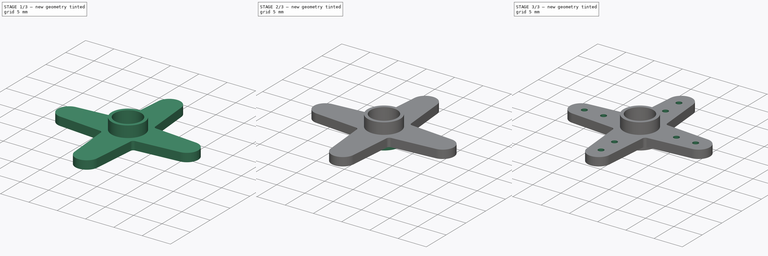
[diagram: build sequence overview — one tinted view per stage of 3, left to right]
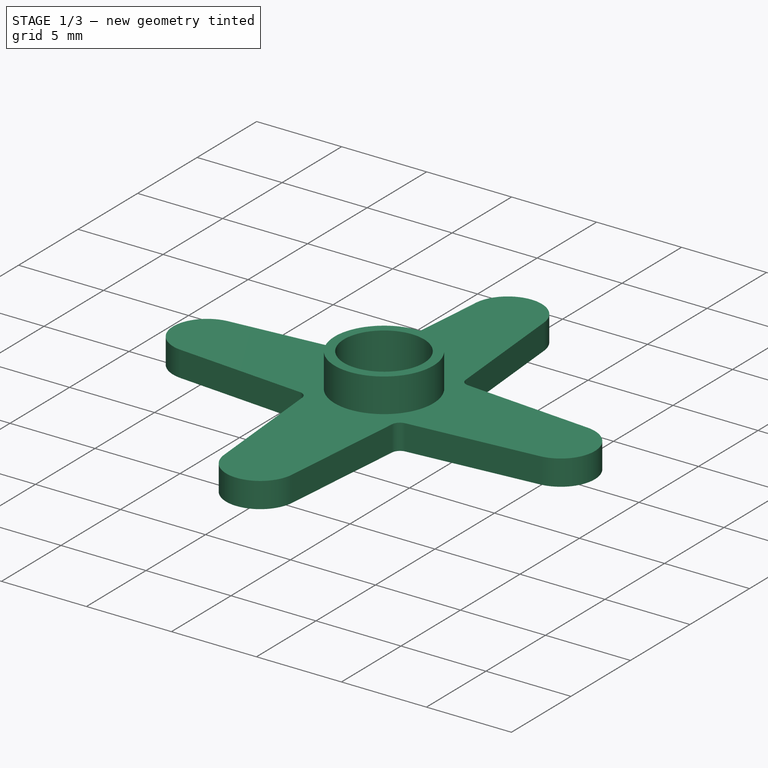
[diagram: stage 1 of 3 — iso view after this stage's code; geometry added in this stage tinted green]
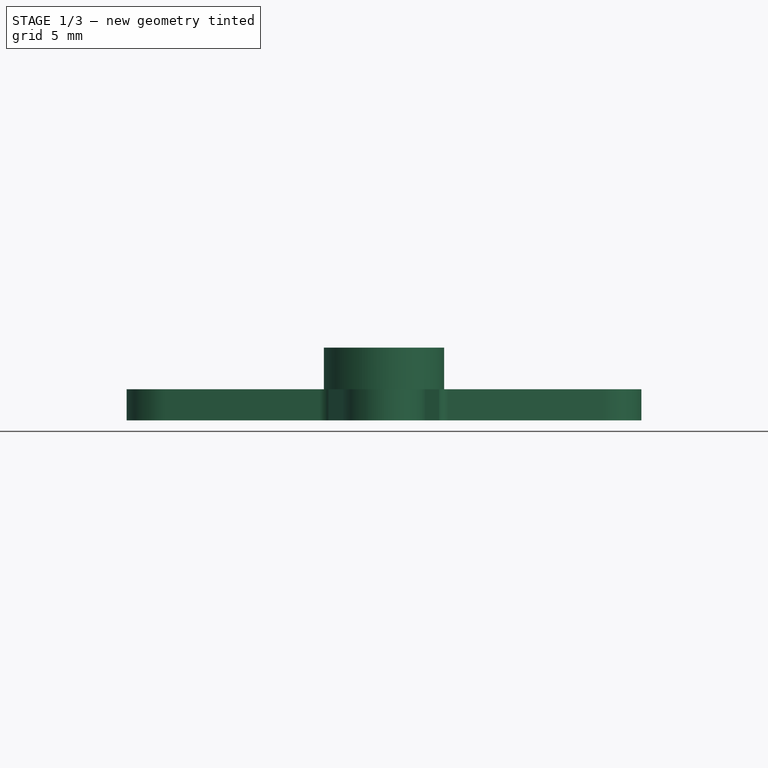
[diagram: stage 1 of 3 — front view after this stage's code; geometry added in this stage tinted green]
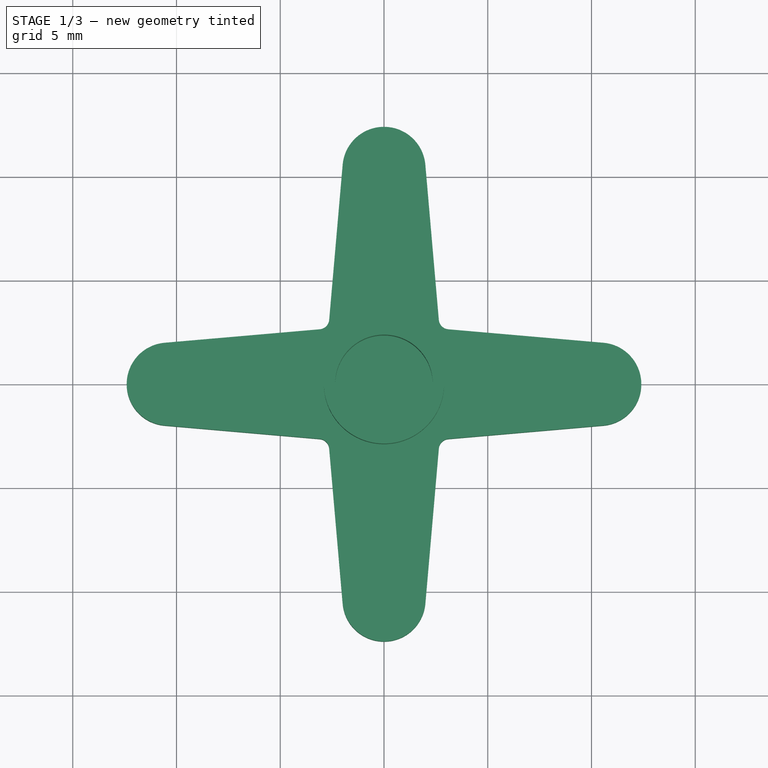
[diagram: stage 1 of 3 — top view after this stage's code; geometry added in this stage tinted green]
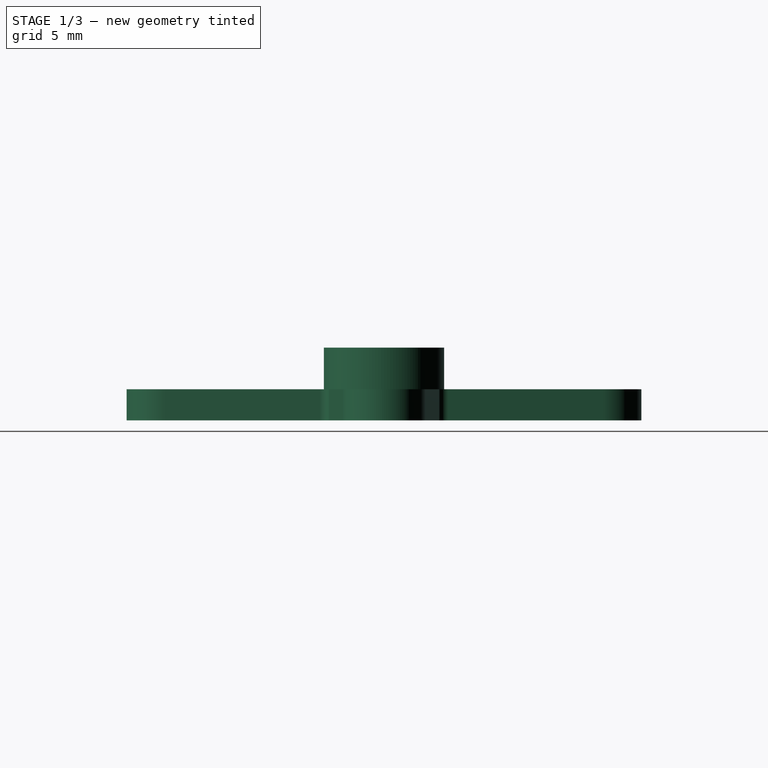
[diagram: stage 1 of 3 — right view after this stage's code; geometry added in this stage tinted green]
FCSTD DOCUMENT  (FreeCAD 0.16R4928 (Git))
Label: EmaxES08MAII_ServoHorn
License: All rights reserved
LicenseURL: http://en.wikipedia.org/wiki/All_rights_reserved
objects: Sketcher::SketchObject×7, PartDesign::Pocket×4, PartDesign::Pad×3, PartDesign::PolarPattern×1
note: 22 computed .brp shape members not serialized (recipe doc carries the construction recipe); baked Part::Feature solids carry a one-line shape summary decoded from their .brp

FEATURE [Sketcher::SketchObject] Sketch
  sketch-geometry (30):
    g0: ArcOfCircle CenterX=-10.4 CenterY=0 CenterZ=0 NormalX=0 NormalY=0 NormalZ=1 Radius=2 StartAngle=1.65744 EndAngle=4.62574
    g1: GeomPoint [constr] X=-12.4 Y=0 Z=0
    g2: Circle [constr] CenterX=0 CenterY=0 CenterZ=0 NormalX=0 NormalY=0 NormalZ=1 Radius=2.9
    g3: LineSegment [constr] StartX=-10.5731 StartY=1.9925 StartZ=0 EndX=-0.250962 EndY=2.88912 EndZ=0
    g4: LineSegment [constr] StartX=-10.5731 StartY=-1.9925 StartZ=0 EndX=-0.250961 EndY=-2.88912 EndZ=0
    g5: LineSegment [constr] StartX=-12.4 StartY=0 StartZ=0 EndX=0 EndY=0 EndZ=0
    g6: LineSegment [constr] StartX=0 StartY=0 StartZ=0 EndX=12.4 EndY=0 EndZ=0
    g7: LineSegment [constr] StartX=0 StartY=0 StartZ=0 EndX=0 EndY=-12.4 EndZ=0
    g8: ArcOfCircle CenterX=0 CenterY=-10.4 CenterZ=0 NormalX=0 NormalY=0 NormalZ=1 Radius=2 StartAngle=3.22824 EndAngle=6.19654
    g9: LineSegment [constr] StartX=0.250962 StartY=2.88912 StartZ=0 EndX=10.5731 EndY=1.9925 EndZ=0
    g10: LineSegment [constr] StartX=0.250962 StartY=-2.88912 StartZ=0 EndX=10.5731 EndY=-1.9925 EndZ=0
    g11: ArcOfCircle CenterX=10.4 CenterY=0 CenterZ=0 NormalX=0 NormalY=0 NormalZ=1 Radius=2 StartAngle=4.79904 EndAngle=7.76733
    g12: LineSegment [constr] StartX=1.9925 StartY=10.5731 StartZ=0 EndX=2.88912 EndY=0.250962 EndZ=0
    g13: LineSegment [constr] StartX=-2.88912 StartY=-0.250962 StartZ=0 EndX=-1.9925 EndY=-10.5731 EndZ=0
    g14: LineSegment [constr] StartX=1.9925 StartY=-10.5731 StartZ=0 EndX=2.88912 EndY=-0.250962 EndZ=0
    g15: LineSegment [constr] StartX=0 StartY=12.4 StartZ=0 EndX=0 EndY=0 EndZ=0
    g16: LineSegment [constr] StartX=-1.9925 StartY=10.5731 StartZ=0 EndX=-2.88912 EndY=0.250962 EndZ=0
    g17: ArcOfCircle CenterX=0 CenterY=10.4 CenterZ=0 NormalX=0 NormalY=0 NormalZ=1 Radius=2 StartAngle=0.0866469 EndAngle=3.05495
    g18: LineSegment StartX=-1.9925 StartY=10.5731 StartZ=0 EndX=-2.64192 EndY=3.09678 EndZ=0
    g19: LineSegment StartX=-10.5731 StartY=1.9925 StartZ=0 EndX=-3.09678 EndY=2.64192 EndZ=0
    g20: ArcOfCircle CenterX=-3.14005 CenterY=3.14005 CenterZ=0 NormalX=0 NormalY=0 NormalZ=1 Radius=0.5 StartAngle=4.79904 EndAngle=6.19654
    g21: LineSegment StartX=1.9925 StartY=10.5731 StartZ=0 EndX=2.64192 EndY=3.09678 EndZ=0
    g22: LineSegment StartX=10.5731 StartY=1.9925 StartZ=0 EndX=3.09678 EndY=2.64192 EndZ=0
    g23: ArcOfCircle CenterX=3.14005 CenterY=3.14005 CenterZ=0 NormalX=0 NormalY=0 NormalZ=1 Radius=0.5 StartAngle=3.22824 EndAngle=4.62574
    g24: ArcOfCircle CenterX=3.14005 CenterY=-3.14005 CenterZ=0 NormalX=0 NormalY=0 NormalZ=1 Radius=0.5 StartAngle=1.65744 EndAngle=3.05495
    g25: LineSegment StartX=3.09678 StartY=-2.64192 StartZ=0 EndX=10.5731 EndY=-1.9925 EndZ=0
    g26: LineSegment StartX=2.64192 StartY=-3.09678 StartZ=0 EndX=1.9925 EndY=-10.5731 EndZ=0
    g27: LineSegment StartX=-10.5731 StartY=-1.9925 StartZ=0 EndX=-3.09678 EndY=-2.64192 EndZ=0
    g28: LineSegment StartX=-1.9925 StartY=-10.5731 StartZ=0 EndX=-2.64192 EndY=-3.09678 EndZ=0
    g29: ArcOfCircle CenterX=-3.14005 CenterY=-3.14005 CenterZ=0 NormalX=0 NormalY=0 NormalZ=1 Radius=0.5 StartAngle=0.0866468 EndAngle=1.48415
  constraints (95):
    c: PointOnObject(g0,g-1)
    c: PointOnObject(g1,g0)
    c: PointOnObject(g1,g-1)
    c: Coincident(g2,g-1)
    c: Radius(g2) = 2.9
    c: Coincident(g3,g0)
    c: PointOnObject(g3,g2)
    c: Coincident(g0,g4)
    c: Radius(g0) = 2
    c: Coincident(g5,g1)
    c: Coincident(g5,g-1)
    c: Distance(g5) = 12.4
    c: Coincident(g6,g-1)
    c: PointOnObject(g6,g-1)
    c: Coincident(g7,g-1)
    c: PointOnObject(g7,g-2)
    c: PointOnObject(g8,g7)
    c: PointOnObject(g7,g8)
    c: Equal(g0,g8)
    c: PointOnObject(g9,g2)
    c: Tangent(g9,g2)
    c: PointOnObject(g10,g2)
    c: Tangent(g10,g2)
    c: PointOnObject(g11,g6)
    c: PointOnObject(g6,g11)
    c: Coincident(g10,g11)
    c: Coincident(g9,g11)
    c: Tangent(g10,g11)
    c: Tangent(g12,g2)
    c: PointOnObject(g13,g2)
    c: Coincident(g13,g8)
    c: Coincident(g14,g8)
    c: PointOnObject(g14,g2)
    c: Equal(g7,g6)
    c: Equal(g7,g5)
    c: Coincident(g15,g-1)
    c: Equal(g15,g6)
    c: Equal(g10,g12)
    c: Equal(g0,g11)
    c: Tangent(g16,g2)
    c: Tangent(g14,g2)
    c: Tangent(g2,g13)
    c: Tangent(g0,g3)
    c: Tangent(g4,g0)
    c: Tangent(g2,g4)
    c: Tangent(g8,g13)
    c: Equal(g14,g13)
    c: Equal(g10,g9)
    c: Equal(g16,g12)
    c: Equal(g3,g4)
    c: PointOnObject(g15,g-2)
    c: PointOnObject(g17,g15)
    c: Coincident(g17,g16)
    c: Coincident(g17,g12)
    c: PointOnObject(g15,g17)
    c: Tangent(g16,g17)
    c: Tangent(g12,g17)
    c: Equal(g17,g0)
    c: Coincident(g18,g16)
    c: Coincident(g19,g0)
    c: Coincident(g20,g19)
    c: Coincident(g20,g18)
    c: Tangent(g20,g16)
    c: Tangent(g20,g3)
    c: Equal(g19,g18)
    c: PointOnObject(g18,g16)
    c: Radius(g20) = 0.5
    c: Coincident(g21,g12)
    c: Coincident(g22,g9)
    c: Coincident(g23,g21)
    c: Coincident(g23,g22)
    c: Tangent(g23,g9)
    c: Equal(g22,g21)
    c: Tangent(g23,g12)
    c: PointOnObject(g22,g9)
    c: Equal(g23,g20)
    c: Coincident(g25,g24)
    c: Coincident(g26,g24)
    c: Coincident(g26,g8)
    c: Equal(g26,g25)
    c: Tangent(g26,g24)
    c: Tangent(g25,g24)
    c: PointOnObject(g24,g10)
    c: PointOnObject(g24,g14)
    c: Coincident(g25,g10)
    c: Equal(g24,g23)
    c: Coincident(g27,g0)
    c: Coincident(g28,g8)
    c: Coincident(g29,g28)
    c: Coincident(g29,g27)
    c: Tangent(g29,g28)
    c: Tangent(g27,g29)
    c: Equal(g28,g27)
    c: PointOnObject(g27,g4)
    c: Equal(g23,g29)
FEATURE [PartDesign::Pad] Pad
  Length = 1.5
  Length2 = 100
  Sketch = -> Sketch
  Type = 0
FEATURE [Sketcher::SketchObject] Sketch001
  Placement = pos=(0,0,1.5) rot=(0,0,1;0rad)
  Support = -> Pad [Face18]
  sketch-geometry (1):
    g0: Circle CenterX=0 CenterY=0 CenterZ=0 NormalX=0 NormalY=0 NormalZ=1 Radius=2.9
  constraints (2):
    c: Coincident(g0,g-1)
    c: Radius(g0) = 2.9
FEATURE [PartDesign::Pad] Pad001
  Length = 2
  Length2 = 100
  Sketch = -> Sketch001
  Type = 0
FEATURE [Sketcher::SketchObject] Sketch002
  Placement = pos=(0,0,3.5) rot=(0,0,1;0rad)
  Support = -> Pad001 [Face20]
  sketch-geometry (1):
    g0: Circle CenterX=0 CenterY=0 CenterZ=0 NormalX=0 NormalY=0 NormalZ=1 Radius=2.35
  constraints (2):
    c: Coincident(g0,g-1)
    c: Radius(g0) = 2.35
FEATURE [PartDesign::Pocket] Pocket
  Length = 2.6
  Sketch = -> Sketch002
  Type = 0
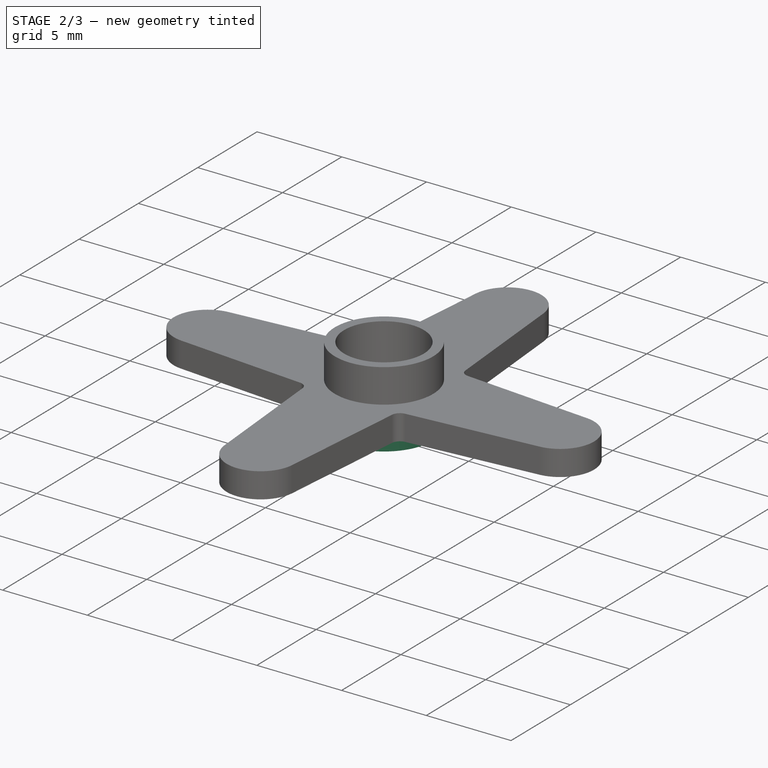
[diagram: stage 2 of 3 — iso view after this stage's code; geometry added in this stage tinted green]
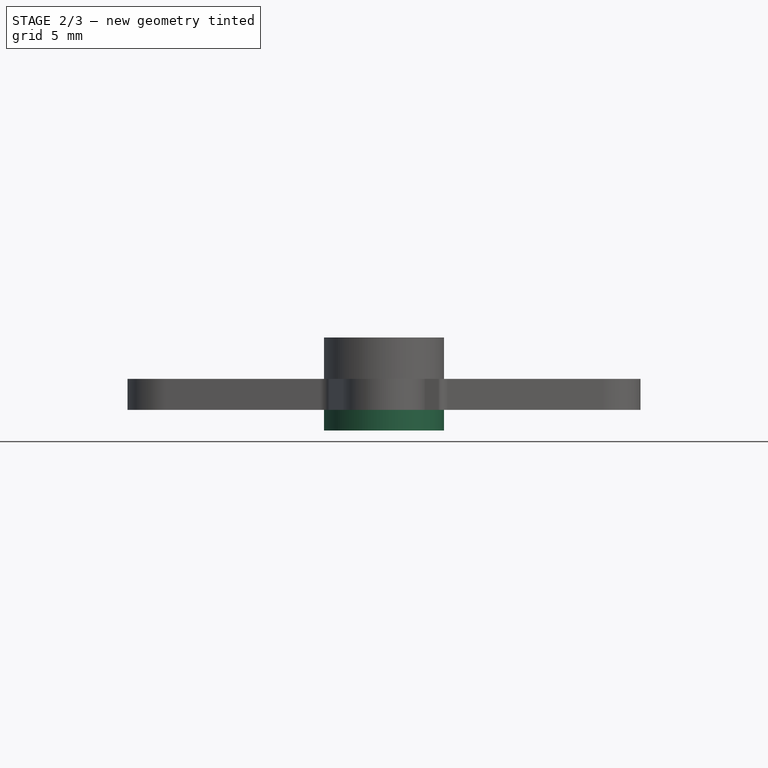
[diagram: stage 2 of 3 — front view after this stage's code; geometry added in this stage tinted green]
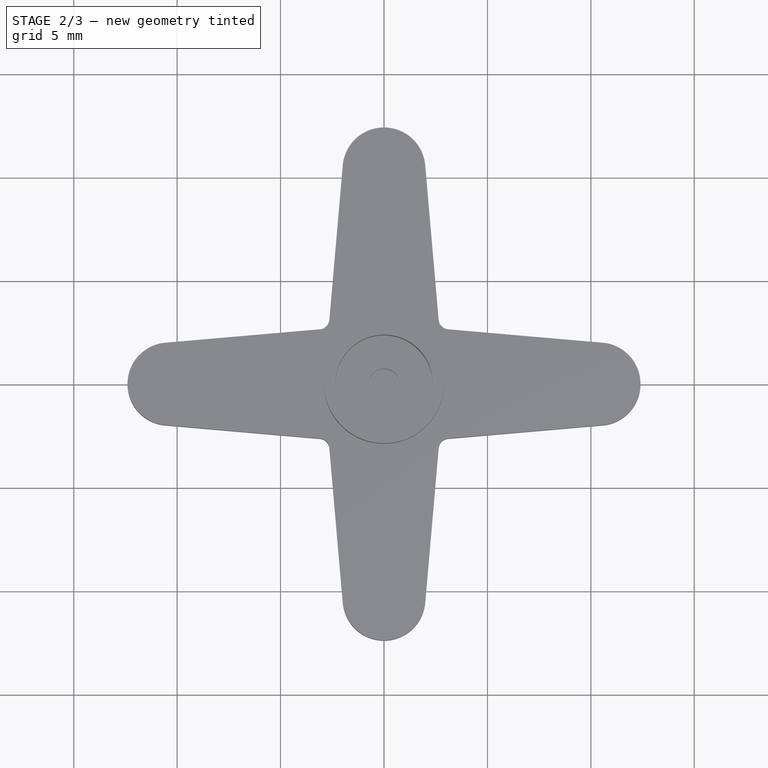
[diagram: stage 2 of 3 — top view after this stage's code; geometry added in this stage tinted green]
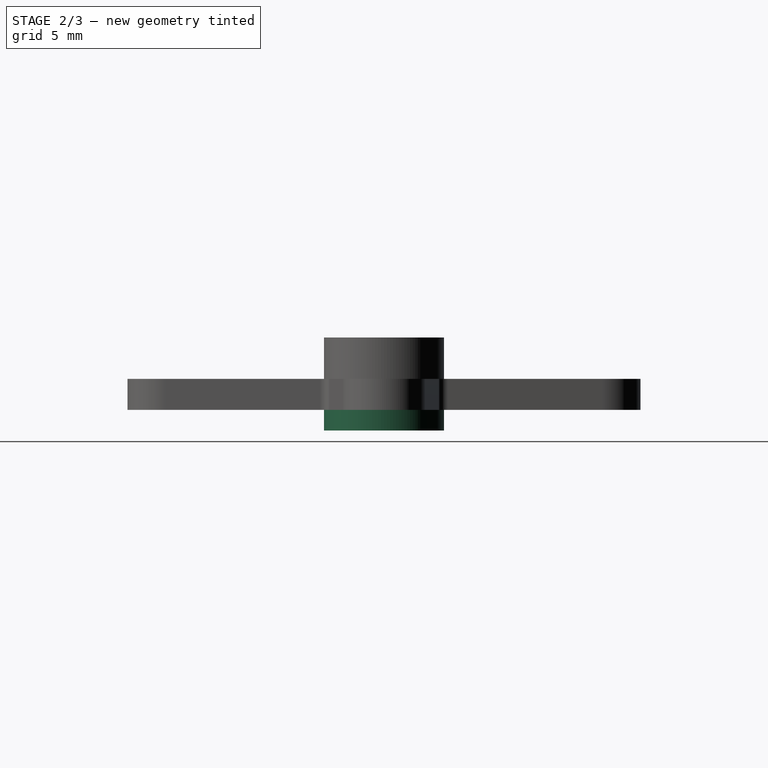
[diagram: stage 2 of 3 — right view after this stage's code; geometry added in this stage tinted green]
FEATURE [Sketcher::SketchObject] Sketch003
  Placement = pos=(0,0,0.9) rot=(0,0,1;0rad)
  Support = -> Pocket [Face22]
  sketch-geometry (1):
    g0: Circle CenterX=0 CenterY=0 CenterZ=0 NormalX=0 NormalY=0 NormalZ=1 Radius=0.75
  constraints (2):
    c: Coincident(g0,g-1)
    c: Radius(g0) = 0.75
FEATURE [PartDesign::Pocket] Pocket001
  Length = 5
  Sketch = -> Sketch003
  Type = 1
FEATURE [Sketcher::SketchObject] Sketch004
  Placement = pos=(0,0,0) rot=(1,0,0;3.14159rad)
  Support = -> Pocket001 [Face4]
  sketch-geometry (1):
    g0: Circle CenterX=0 CenterY=0 CenterZ=0 NormalX=0 NormalY=0 NormalZ=1 Radius=2.9
  constraints (2):
    c: Coincident(g0,g-1)
    c: Radius(g0) = 2.9
FEATURE [PartDesign::Pad] Pad002
  Length = 1
  Length2 = 100
  Sketch = -> Sketch004
  Type = 0
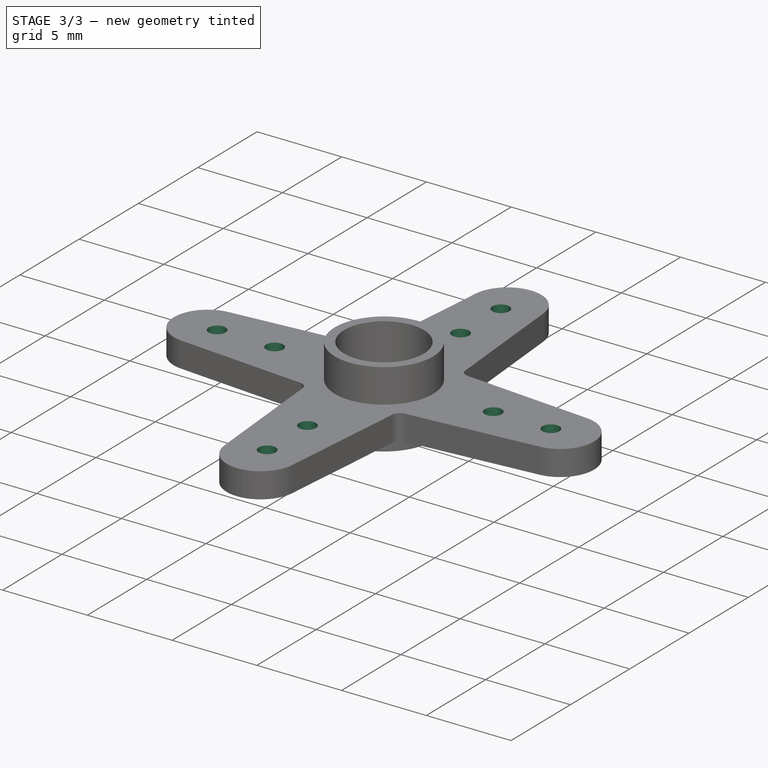
[diagram: stage 3 of 3 — iso view after this stage's code; geometry added in this stage tinted green]
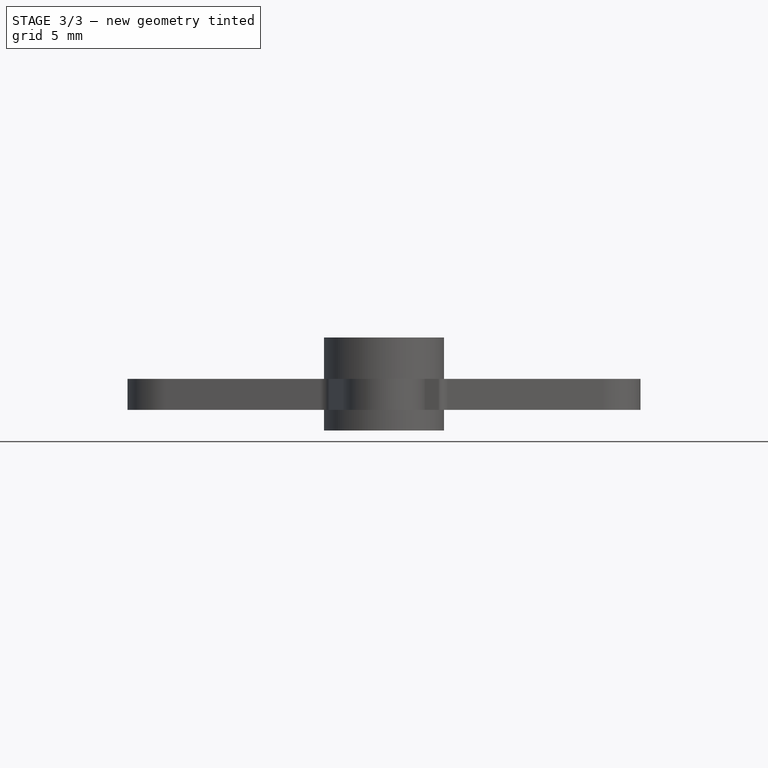
[diagram: stage 3 of 3 — front view after this stage's code; geometry added in this stage tinted green]
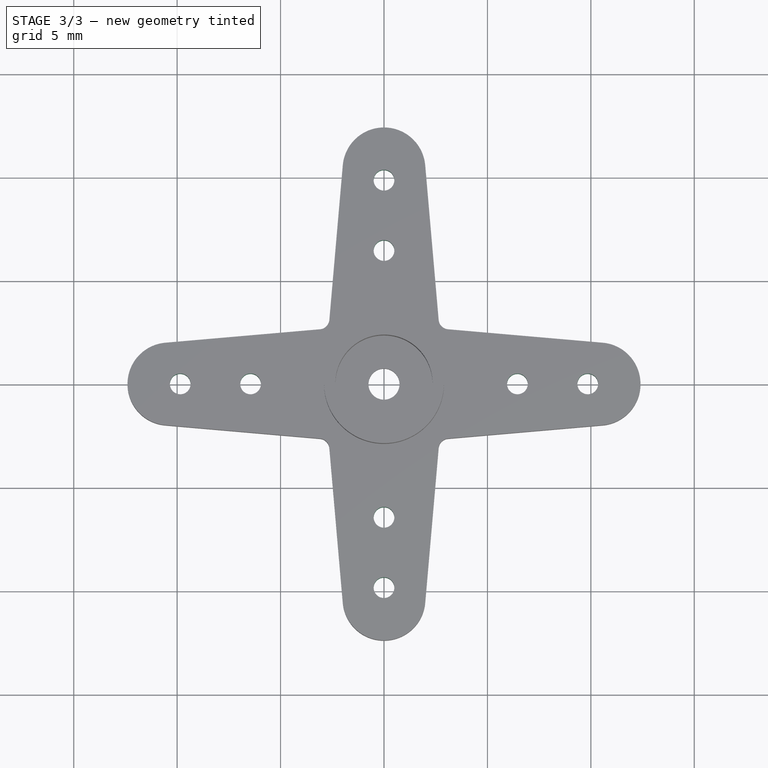
[diagram: stage 3 of 3 — top view after this stage's code; geometry added in this stage tinted green]
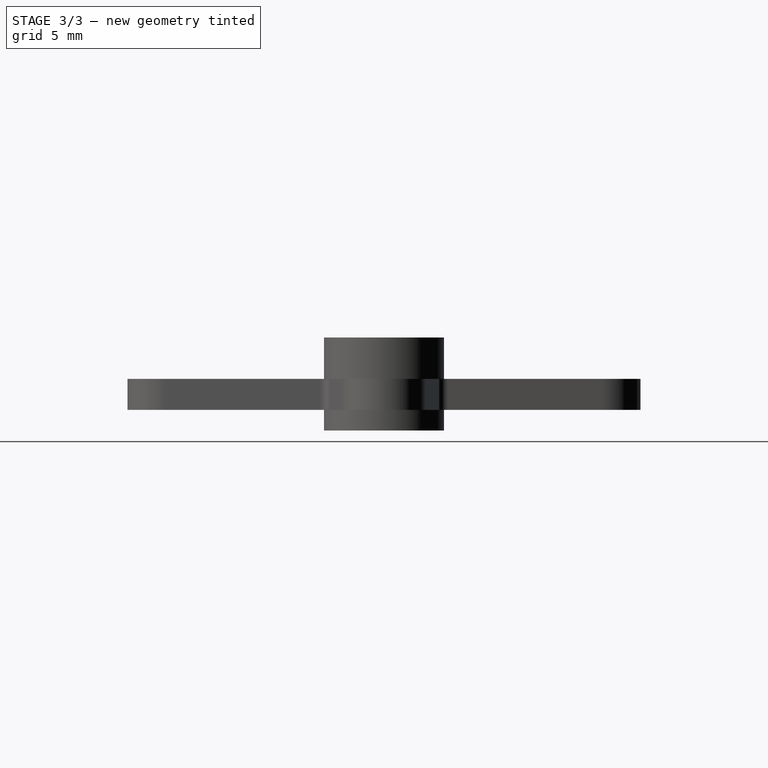
[diagram: stage 3 of 3 — right view after this stage's code; geometry added in this stage tinted green]
FEATURE [Sketcher::SketchObject] Sketch005
  Placement = pos=(0,0,-1) rot=(1,0,0;3.14159rad)
  Support = -> Pad002 [Face21]
  sketch-geometry (1):
    g0: Circle CenterX=0 CenterY=0 CenterZ=0 NormalX=0 NormalY=0 NormalZ=1 Radius=2.05
  constraints (2):
    c: Coincident(g0,g-1)
    c: Radius(g0) = 2.05
FEATURE [PartDesign::Pocket] Pocket002
  Length = 1
  Sketch = -> Sketch005
  Type = 0
FEATURE [Sketcher::SketchObject] Sketch006
  Placement = pos=(0,0,0) rot=(1,0,0;3.14159rad)
  Support = -> Pocket002 [Face4]
  sketch-geometry (2):
    g0: Circle CenterX=-6.45 CenterY=0 CenterZ=0 NormalX=0 NormalY=0 NormalZ=1 Radius=0.5
    g1: Circle CenterX=-9.85 CenterY=0 CenterZ=0 NormalX=0 NormalY=0 NormalZ=1 Radius=0.5
  constraints (6):
    c: PointOnObject(g0,g-1)
    c: PointOnObject(g1,g-1)
    c: Equal(g1,g0)
    c: Radius(g0) = 0.5
    c: DistanceX(g-1,g0) = -6.45
    c: DistanceX(g0,g1) = -3.4
FEATURE [PartDesign::Pocket] Pocket003
  Length = 5
  Sketch = -> Sketch006
  Type = 1
FEATURE [PartDesign::PolarPattern] PolarPattern
  Angle = 360
  Axis = -> Sketch006 [N_Axis]
  Occurrences = 4
  Originals = -> [Pocket003]
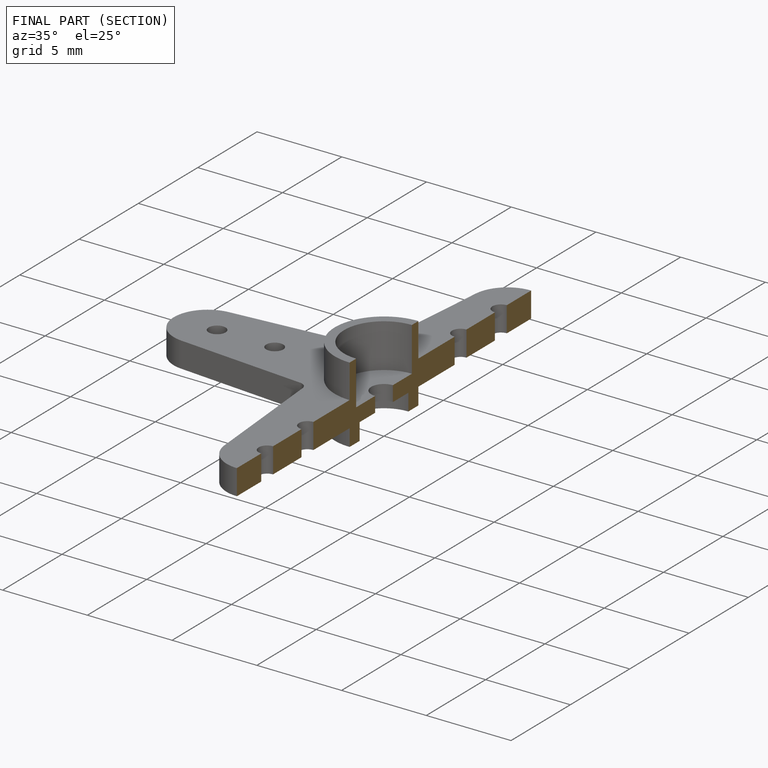
[diagram: finished part — half-section view (interior)]
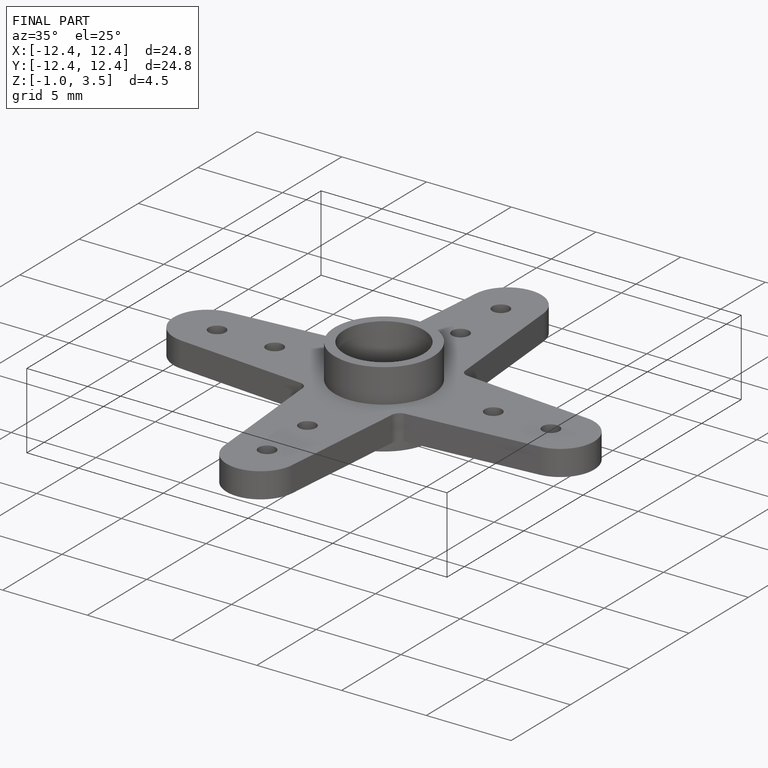
[diagram: finished part — iso view with bounding-box wireframe]
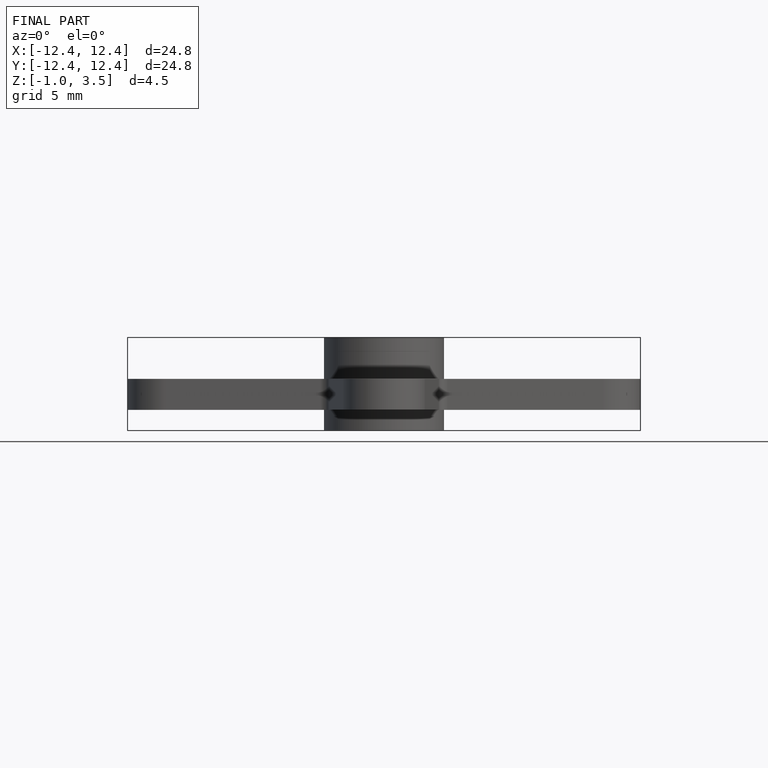
[diagram: finished part — front view with bounding-box wireframe]
